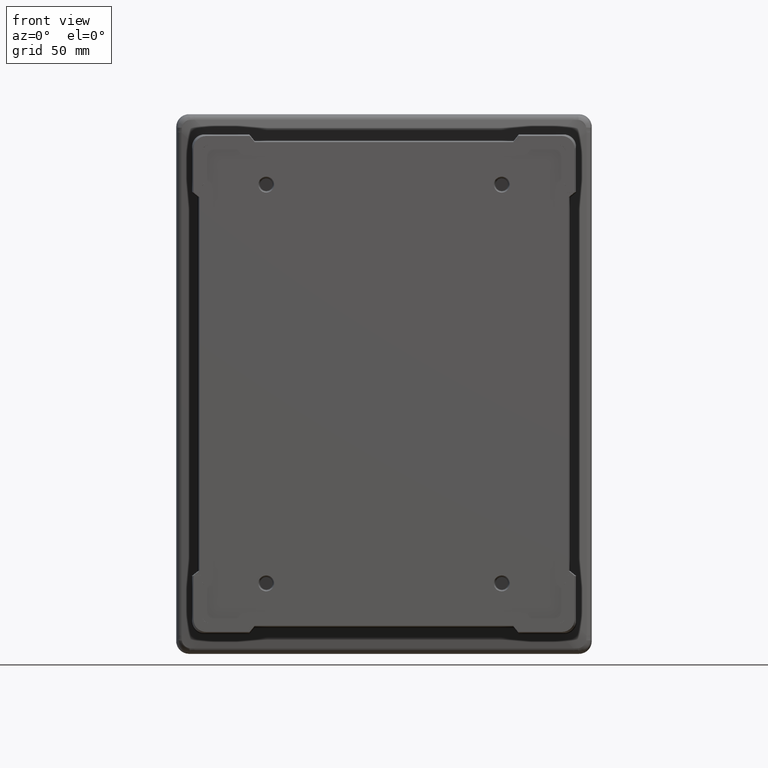
[diagram: clean part render]
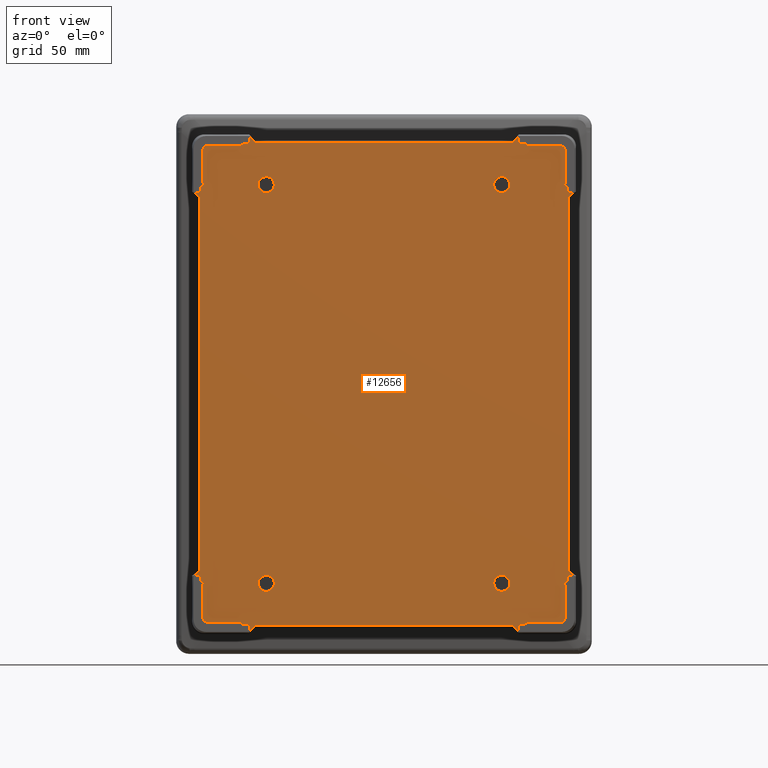
[diagram: same view with one face highlighted and labeled with its STEP entity id]
A machine part, front view. The second image highlights one B-rep face of the part: STEP entity #12656.
In plain terms, the highlighted planar face has unit normal (0, 1, 0).
Its self-contained STEP definition (entity closure, byte-faithful):
#12 = VECTOR ( 'NONE', #868, 1000.000000000000000 ) ;
#19 = VERTEX_POINT ( 'NONE', #13416 ) ;
#23 = LINE ( 'NONE', #11848, #8841 ) ;
#69 = VERTEX_POINT ( 'NONE', #6133 ) ;
#73 = DIRECTION ( 'NONE',  ( 0.7686277124893465800, -0.0000000000000000000, -0.6396963651556841800 ) ) ;
#141 = CARTESIAN_POINT ( 'NONE',  ( 0.0000000000000000000, -113.0000000000000000, 0.0000000000000000000 ) ) ;
#253 = LINE ( 'NONE', #12653, #12900 ) ;
#256 = CARTESIAN_POINT ( 'NONE',  ( -50.79999999999999700, -113.0000000000000000, 82.54999999999999700 ) ) ;
#346 = CIRCLE ( 'NONE', #15269, 3.449999999999994800 ) ;
#357 = CARTESIAN_POINT ( 'NONE',  ( 79.59865092880389200, -113.0000000000000000, -80.56076032317028500 ) ) ;
#359 = VECTOR ( 'NONE', #11896, 1000.000000000000000 ) ;
#407 = DIRECTION ( 'NONE',  ( -0.0000000000000000000, -0.0000000000000000000, -1.000000000000000000 ) ) ;
#414 = DIRECTION ( 'NONE',  ( -0.0000000000000000000, 1.000000000000000000, -0.0000000000000000000 ) ) ;
#460 = DIRECTION ( 'NONE',  ( 0.6427876096865436900, 0.0000000000000000000, -0.7660444431189743500 ) ) ;
#483 = CARTESIAN_POINT ( 'NONE',  ( 61.07609263615650300, -113.0000000000000000, 97.80395304743250100 ) ) ;
#487 = VECTOR ( 'NONE', #12978, 1000.000000000000000 ) ;
#560 = CARTESIAN_POINT ( 'NONE',  ( 60.79516305429810800, -113.0000000000000000, 103.7970541198660000 ) ) ;
#590 = CARTESIAN_POINT ( 'NONE',  ( -58.11110922711555600, -113.0000000000000000, 107.8611092271155200 ) ) ;
#618 = VECTOR ( 'NONE', #3543, 1000.000000000000000 ) ;
#624 = EDGE_CURVE ( 'NONE', #6144, #12127, #4903, .T. ) ;
#633 = DIRECTION ( 'NONE',  ( -0.6924674986019895300, 0.0000000000000000000, 0.7214490719239325900 ) ) ;
#664 = CARTESIAN_POINT ( 'NONE',  ( -79.04705411986609000, -113.0000000000000000, 84.78127374505419300 ) ) ;
#723 = AXIS2_PLACEMENT_3D ( 'NONE', #10188, #15005, #2913 ) ;
#770 = CARTESIAN_POINT ( 'NONE',  ( -61.62191955853109700, -113.0000000000000000, 102.9971493158303700 ) ) ;
#774 = VECTOR ( 'NONE', #8093, 1000.000000000000100 ) ;
#787 = VECTOR ( 'NONE', #7830, 1000.000000000000100 ) ;
#798 = CARTESIAN_POINT ( 'NONE',  ( 79.04705411986609000, -113.0000000000000000, 82.43395982299048800 ) ) ;
#830 = ORIENTED_EDGE ( 'NONE', *, *, #2379, .T. ) ;
#862 = CARTESIAN_POINT ( 'NONE',  ( -78.24714931583039900, -113.0000000000000000, 101.9616779351163700 ) ) ;
#868 = DIRECTION ( 'NONE',  ( -1.000000000000000000, 0.0000000000000000000, -1.141356245349631100E-016 ) ) ;
#900 = EDGE_CURVE ( 'NONE', #2910, #14219, #7874, .T. ) ;
#910 = VERTEX_POINT ( 'NONE', #9520 ) ;
#933 = ORIENTED_EDGE ( 'NONE', *, *, #4670, .T. ) ;
#934 = EDGE_CURVE ( 'NONE', #10741, #7497, #4790, .T. ) ;
#943 = EDGE_CURVE ( 'NONE', #12841, #6820, #2469, .T. ) ;
#992 = VERTEX_POINT ( 'NONE', #8580 ) ;
#1009 = VERTEX_POINT ( 'NONE', #6729 ) ;
#1034 = VECTOR ( 'NONE', #5893, 999.9999999999998900 ) ;
#1055 = CARTESIAN_POINT ( 'NONE',  ( 82.24714931583045500, -113.0000000000000000, 82.77030338133967300 ) ) ;
#1056 = CARTESIAN_POINT ( 'NONE',  ( 79.59865092880387700, -113.0000000000000000, -105.7500000000000000 ) ) ;
#1076 = DIRECTION ( 'NONE',  ( 0.0000000000000000000, 0.0000000000000000000, 1.000000000000000000 ) ) ;
#1124 = CIRCLE ( 'NONE', #723, 3.449999999999994800 ) ;
#1133 = ORIENTED_EDGE ( 'NONE', *, *, #11074, .F. ) ;
#1165 = VECTOR ( 'NONE', #1910, 1000.000000000000100 ) ;
#1179 = EDGE_CURVE ( 'NONE', #8704, #7953, #7676, .T. ) ;
#1278 = LINE ( 'NONE', #6421, #12222 ) ;
#1288 = ORIENTED_EDGE ( 'NONE', *, *, #8871, .T. ) ;
#1325 = VERTEX_POINT ( 'NONE', #12138 ) ;
#1356 = EDGE_LOOP ( 'NONE', ( #2544, #12530 ) ) ;
#1406 = ORIENTED_EDGE ( 'NONE', *, *, #14290, .T. ) ;
#1423 = ORIENTED_EDGE ( 'NONE', *, *, #4065, .T. ) ;
#1496 = DIRECTION ( 'NONE',  ( 0.0000000000000000000, -0.0000000000000000000, 1.000000000000000000 ) ) ;
#1523 = CARTESIAN_POINT ( 'NONE',  ( -50.79999999999999700, -113.0000000000000000, 89.44999999999998900 ) ) ;
#1569 = EDGE_CURVE ( 'NONE', #6792, #4241, #11678, .T. ) ;
#1593 = CARTESIAN_POINT ( 'NONE',  ( 79.04705411986609000, -113.0000000000000000, -84.78127374505419300 ) ) ;
#1616 = VECTOR ( 'NONE', #633, 1000.000000000000000 ) ;
#1632 = DIRECTION ( 'NONE',  ( -0.6924674986019901900, -0.0000000000000000000, -0.7214490719239319300 ) ) ;
#1668 = VECTOR ( 'NONE', #15624, 1000.000000000000000 ) ;
#1676 = CARTESIAN_POINT ( 'NONE',  ( -79.04705411986609000, -113.0000000000000000, 84.78127374505419300 ) ) ;
#1725 = CARTESIAN_POINT ( 'NONE',  ( -78.24714931583045500, -113.0000000000000000, -86.37191955853101900 ) ) ;
#1728 = EDGE_CURVE ( 'NONE', #15508, #10461, #14553, .T. ) ;
#1750 = ORIENTED_EDGE ( 'NONE', *, *, #900, .T. ) ;
#1776 = CARTESIAN_POINT ( 'NONE',  ( -60.79516305429811500, -113.0000000000000000, -103.7970541198660200 ) ) ;
#1805 = EDGE_CURVE ( 'NONE', #3010, #11420, #4865, .T. ) ;
#1815 = FACE_BOUND ( 'NONE', #1356, .T. ) ;
#1845 = CARTESIAN_POINT ( 'NONE',  ( -83.11110922711556300, -113.0000000000000000, 82.86110922711549200 ) ) ;
#1848 = VECTOR ( 'NONE', #9681, 1000.000000000000000 ) ;
#1861 = VERTEX_POINT ( 'NONE', #3783 ) ;
#1910 = DIRECTION ( 'NONE',  ( 0.1045284632676522500, 0.0000000000000000000, -0.9945218953682735100 ) ) ;
#1923 = VECTOR ( 'NONE', #12001, 1000.000000000000100 ) ;
#1944 = ORIENTED_EDGE ( 'NONE', *, *, #10388, .T. ) ;
#1984 = CARTESIAN_POINT ( 'NONE',  ( 60.79516305429810800, -113.0000000000000000, 103.7970541198660000 ) ) ;
#2012 = DIRECTION ( 'NONE',  ( 1.000000000000000000, -0.0000000000000000000, 1.141356245349630900E-016 ) ) ;
#2056 = VERTEX_POINT ( 'NONE', #6543 ) ;
#2096 = CARTESIAN_POINT ( 'NONE',  ( 78.24714931583044100, -113.0000000000000000, 86.37191955853104700 ) ) ;
#2097 = DIRECTION ( 'NONE',  ( 0.6427876096865426900, -0.0000000000000000000, 0.7660444431189752400 ) ) ;
#2118 = LINE ( 'NONE', #3913, #6933 ) ;
#2140 = DIRECTION ( 'NONE',  ( -0.0000000000000000000, 1.000000000000000000, -0.0000000000000000000 ) ) ;
#2147 = EDGE_CURVE ( 'NONE', #12531, #2910, #12049, .T. ) ;
#2153 = EDGE_CURVE ( 'NONE', #3051, #10741, #15518, .T. ) ;
#2231 = EDGE_CURVE ( 'NONE', #11479, #14089, #2816, .T. ) ;
#2276 = CIRCLE ( 'NONE', #12328, 3.449999999999994800 ) ;
#2291 = CARTESIAN_POINT ( 'NONE',  ( -55.80673328882705400, -113.0000000000000000, 104.3374322855034400 ) ) ;
#2379 = EDGE_CURVE ( 'NONE', #7953, #3010, #3574, .T. ) ;
#2401 = EDGE_CURVE ( 'NONE', #2914, #12510, #1278, .T. ) ;
#2431 = CARTESIAN_POINT ( 'NONE',  ( 61.61609800155272900, -113.0000000000000000, -102.9417609010471000 ) ) ;
#2444 = CARTESIAN_POINT ( 'NONE',  ( 77.21167793511642700, -113.0000000000000000, 102.9971493158303800 ) ) ;
#2468 = VERTEX_POINT ( 'NONE', #10164 ) ;
#2469 = LINE ( 'NONE', #14667, #7478 ) ;
#2481 = ORIENTED_EDGE ( 'NONE', *, *, #8045, .T. ) ;
#2505 = VECTOR ( 'NONE', #8628, 1000.000000000000100 ) ;
#2521 = DIRECTION ( 'NONE',  ( 0.0000000000000000000, 1.000000000000000000, 0.0000000000000000000 ) ) ;
#2526 = EDGE_CURVE ( 'NONE', #13321, #2056, #346, .T. ) ;
#2531 = LINE ( 'NONE', #483, #6969 ) ;
#2544 = ORIENTED_EDGE ( 'NONE', *, *, #15848, .T. ) ;
#2599 = EDGE_CURVE ( 'NONE', #11420, #3904, #7254, .T. ) ;
#2601 = CARTESIAN_POINT ( 'NONE',  ( 79.04705411986609000, -113.0000000000000000, -84.78127374505419300 ) ) ;
#2630 = LINE ( 'NONE', #9706, #4180 ) ;
#2680 = ORIENTED_EDGE ( 'NONE', *, *, #1569, .T. ) ;
#2687 = LINE ( 'NONE', #590, #1165 ) ;
#2712 = CARTESIAN_POINT ( 'NONE',  ( -77.05395304743248600, -113.0000000000000000, 78.44822557637076000 ) ) ;
#2727 = CARTESIAN_POINT ( 'NONE',  ( -79.04705411986609000, -113.0000000000000000, 82.43395982299046000 ) ) ;
#2738 = VECTOR ( 'NONE', #9653, 1000.000000000000000 ) ;
#2816 = LINE ( 'NONE', #14353, #1668 ) ;
#2835 = ORIENTED_EDGE ( 'NONE', *, *, #12179, .T. ) ;
#2891 = ORIENTED_EDGE ( 'NONE', *, *, #15670, .T. ) ;
#2910 = VERTEX_POINT ( 'NONE', #2431 ) ;
#2913 = DIRECTION ( 'NONE',  ( 0.0000000000000000000, 0.0000000000000000000, 1.000000000000000000 ) ) ;
#2914 = VERTEX_POINT ( 'NONE', #8627 ) ;
#2929 = DIRECTION ( 'NONE',  ( 0.0000000000000000000, 0.0000000000000000000, -1.000000000000000000 ) ) ;
#2957 = CARTESIAN_POINT ( 'NONE',  ( -60.79516305429808700, -113.0000000000000000, 103.7970541198659900 ) ) ;
#3010 = VERTEX_POINT ( 'NONE', #11289 ) ;
#3051 = VERTEX_POINT ( 'NONE', #13667 ) ;
#3103 = VERTEX_POINT ( 'NONE', #6323 ) ;
#3154 = CARTESIAN_POINT ( 'NONE',  ( 50.79999999999999700, -113.0000000000000000, -86.00000000000000000 ) ) ;
#3171 = CARTESIAN_POINT ( 'NONE',  ( 79.04705411986609000, -113.0000000000000000, -82.43395982299044500 ) ) ;
#3196 = VECTOR ( 'NONE', #10674, 1000.000000000000000 ) ;
#3197 = VERTEX_POINT ( 'NONE', #11407 ) ;
#3232 = CARTESIAN_POINT ( 'NONE',  ( -58.01846891980891000, -113.0000000000000000, -106.9796955802488400 ) ) ;
#3251 = CIRCLE ( 'NONE', #10753, 3.449999999999994800 ) ;
#3275 =( BOUNDED_CURVE ( )  B_SPLINE_CURVE ( 3, ( #9377, #15563, #862, #11904 ),
 .UNSPECIFIED., .F., .F. ) 
 B_SPLINE_CURVE_WITH_KNOTS ( ( 4, 4 ),
 ( 5.497825219993078600, 7.068545394366097400 ),
 .UNSPECIFIED. ) 
 CURVE ( )  GEOMETRIC_REPRESENTATION_ITEM ( )  RATIONAL_B_SPLINE_CURVE ( ( 1.000000000000000000, 0.8047558030806112300, 0.8047558030806112300, 1.000000000000000000 ) ) 
 REPRESENTATION_ITEM ( '' )  );
#3282 = VECTOR ( 'NONE', #9712, 1000.000000000000100 ) ;
#3377 = EDGE_CURVE ( 'NONE', #10452, #6792, #3735, .T. ) ;
#3418 = DIRECTION ( 'NONE',  ( 0.9945218953682737300, -0.0000000000000000000, 0.1045284632676500800 ) ) ;
#3456 = LINE ( 'NONE', #770, #12496 ) ;
#3510 = ORIENTED_EDGE ( 'NONE', *, *, #9051, .T. ) ;
#3516 = CARTESIAN_POINT ( 'NONE',  ( -82.24714931583047000, -113.0000000000000000, -82.77030338133964400 ) ) ;
#3522 = CARTESIAN_POINT ( 'NONE',  ( -50.79999999999999700, -113.0000000000000000, 86.00000000000000000 ) ) ;
#3530 = ORIENTED_EDGE ( 'NONE', *, *, #13249, .F. ) ;
#3543 = DIRECTION ( 'NONE',  ( 1.000000000000000000, 0.0000000000000000000, 0.0000000000000000000 ) ) ;
#3574 = LINE ( 'NONE', #12243, #3763 ) ;
#3598 = CARTESIAN_POINT ( 'NONE',  ( 60.79516305429811500, -113.0000000000000000, -103.7970541198660000 ) ) ;
#3616 = CARTESIAN_POINT ( 'NONE',  ( -78.24714931583042700, -113.0000000000000000, -100.4972445081699400 ) ) ;
#3686 = CARTESIAN_POINT ( 'NONE',  ( 75.74724450816998500, -113.0000000000000000, 102.9971493158303700 ) ) ;
#3695 = CARTESIAN_POINT ( 'NONE',  ( -77.58691270247447800, -113.0000000000000000, 86.30252589418985600 ) ) ;
#3714 = CARTESIAN_POINT ( 'NONE',  ( 77.58691270247450700, -113.0000000000000000, -86.30252589418982700 ) ) ;
#3735 = LINE ( 'NONE', #1056, #14875 ) ;
#3763 = VECTOR ( 'NONE', #4906, 1000.000000000000000 ) ;
#3783 = CARTESIAN_POINT ( 'NONE',  ( 75.74724450816999900, -113.0000000000000000, -102.9971493158303600 ) ) ;
#3795 = PLANE ( 'NONE',  #14600 ) ;
#3904 = VERTEX_POINT ( 'NONE', #11203 ) ;
#3913 = CARTESIAN_POINT ( 'NONE',  ( -79.59865092880387700, -113.0000000000000000, -105.7500000000000000 ) ) ;
#3923 = EDGE_CURVE ( 'NONE', #1325, #9974, #8734, .T. ) ;
#3968 = ORIENTED_EDGE ( 'NONE', *, *, #2401, .T. ) ;
#3975 = CARTESIAN_POINT ( 'NONE',  ( -78.24714931583042700, -113.0000000000000000, 86.37191955853103300 ) ) ;
#3985 = VECTOR ( 'NONE', #9920, 1000.000000000000200 ) ;
#4000 = EDGE_CURVE ( 'NONE', #14056, #11479, #15459, .T. ) ;
#4030 = LINE ( 'NONE', #13769, #787 ) ;
#4065 = EDGE_CURVE ( 'NONE', #11784, #13797, #4891, .T. ) ;
#4089 = CARTESIAN_POINT ( 'NONE',  ( 53.67550526945411300, -113.0000000000000000, -101.8039530474324900 ) ) ;
#4110 = EDGE_CURVE ( 'NONE', #14165, #12531, #9688, .T. ) ;
#4164 = CIRCLE ( 'NONE', #11102, 3.449999999999994800 ) ;
#4180 = VECTOR ( 'NONE', #11085, 1000.000000000000000 ) ;
#4202 = VECTOR ( 'NONE', #7791, 1000.000000000000100 ) ;
#4211 = ORIENTED_EDGE ( 'NONE', *, *, #8168, .T. ) ;
#4241 = VERTEX_POINT ( 'NONE', #1055 ) ;
#4332 = CARTESIAN_POINT ( 'NONE',  ( 50.79999999999999700, -113.0000000000000000, 86.00000000000000000 ) ) ;
#4347 = DIRECTION ( 'NONE',  ( -0.1045284632676519700, -0.0000000000000000000, 0.9945218953682736200 ) ) ;
#4421 = ORIENTED_EDGE ( 'NONE', *, *, #7498, .T. ) ;
#4434 = LINE ( 'NONE', #12842, #14227 ) ;
#4491 = DIRECTION ( 'NONE',  ( -2.504227853161798400E-015, -0.0000000000000000000, -1.000000000000000000 ) ) ;
#4602 = VERTEX_POINT ( 'NONE', #3232 ) ;
#4618 = ORIENTED_EDGE ( 'NONE', *, *, #12847, .T. ) ;
#4670 = EDGE_CURVE ( 'NONE', #13828, #7701, #8351, .T. ) ;
#4708 = CARTESIAN_POINT ( 'NONE',  ( -50.79999999999999700, -113.0000000000000000, -86.00000000000000000 ) ) ;
#4729 = CARTESIAN_POINT ( 'NONE',  ( -81.00000000000001400, -113.0000000000000000, -104.3374322855034400 ) ) ;
#4762 = CARTESIAN_POINT ( 'NONE',  ( 78.24714931583039900, -113.0000000000000000, 101.9616779351163700 ) ) ;
#4790 = LINE ( 'NONE', #6533, #4202 ) ;
#4865 =( BOUNDED_CURVE ( )  B_SPLINE_CURVE ( 3, ( #9668, #4762, #2444, #3686 ),
 .UNSPECIFIED., .F., .F. ) 
 B_SPLINE_CURVE_WITH_KNOTS ( ( 4, 4 ),
 ( 5.497825219993075100, 7.068545394366093900 ),
 .UNSPECIFIED. ) 
 CURVE ( )  GEOMETRIC_REPRESENTATION_ITEM ( )  RATIONAL_B_SPLINE_CURVE ( ( 1.000000000000000000, 0.8047558030806112300, 0.8047558030806112300, 1.000000000000000000 ) ) 
 REPRESENTATION_ITEM ( '' )  );
#4891 = LINE ( 'NONE', #11790, #1616 ) ;
#4903 = LINE ( 'NONE', #9579, #12585 ) ;
#4906 = DIRECTION ( 'NONE',  ( -2.504227853161800700E-015, -0.0000000000000000000, 1.000000000000000000 ) ) ;
#4910 = CARTESIAN_POINT ( 'NONE',  ( 75.74724450816999900, -113.0000000000000000, -102.9971493158303600 ) ) ;
#4994 = EDGE_CURVE ( 'NONE', #9258, #15104, #11797, .T. ) ;
#5011 = CARTESIAN_POINT ( 'NONE',  ( 78.24714931583041300, -113.0000000000000000, -100.4972445081699400 ) ) ;
#5017 = LINE ( 'NONE', #4089, #5807 ) ;
#5035 = EDGE_CURVE ( 'NONE', #14089, #1325, #14663, .T. ) ;
#5153 = EDGE_CURVE ( 'NONE', #14470, #14235, #9284, .T. ) ;
#5306 = VECTOR ( 'NONE', #9143, 999.9999999999998900 ) ;
#5308 = ORIENTED_EDGE ( 'NONE', *, *, #5911, .T. ) ;
#5319 = DIRECTION ( 'NONE',  ( -0.1045284632676516100, 0.0000000000000000000, -0.9945218953682735100 ) ) ;
#5352 = DIRECTION ( 'NONE',  ( 0.0000000000000000000, 0.0000000000000000000, 1.000000000000000000 ) ) ;
#5383 = CARTESIAN_POINT ( 'NONE',  ( -58.02030338133972300, -113.0000000000000000, 106.9971493158303700 ) ) ;
#5414 = CARTESIAN_POINT ( 'NONE',  ( -55.80134676371475400, -113.0000000000000000, -104.3374322855034400 ) ) ;
#5573 = ORIENTED_EDGE ( 'NONE', *, *, #6884, .T. ) ;
#5599 = DIRECTION ( 'NONE',  ( 0.0000000000000000000, -1.000000000000000000, 0.0000000000000000000 ) ) ;
#5670 = CARTESIAN_POINT ( 'NONE',  ( 60.79516305429811500, -113.0000000000000000, -103.7970541198660000 ) ) ;
#5676 = CARTESIAN_POINT ( 'NONE',  ( 83.11110922711557700, -113.0000000000000000, -82.86110922711546300 ) ) ;
#5719 = CARTESIAN_POINT ( 'NONE',  ( 78.24714931583044100, -113.0000000000000000, -86.37191955853100500 ) ) ;
#5745 = VERTEX_POINT ( 'NONE', #8360 ) ;
#5804 = ORIENTED_EDGE ( 'NONE', *, *, #2526, .T. ) ;
#5807 = VECTOR ( 'NONE', #460, 999.9999999999998900 ) ;
#5825 = ORIENTED_EDGE ( 'NONE', *, *, #9772, .F. ) ;
#5873 = FACE_BOUND ( 'NONE', #12092, .T. ) ;
#5879 = CARTESIAN_POINT ( 'NONE',  ( -61.62191955853109700, -113.0000000000000000, -102.9971493158303600 ) ) ;
#5893 = DIRECTION ( 'NONE',  ( 0.9945218953682737300, -0.0000000000000000000, 0.1045284632676505100 ) ) ;
#5911 = EDGE_CURVE ( 'NONE', #13276, #14470, #7357, .T. ) ;
#5945 = DIRECTION ( 'NONE',  ( 0.0000000000000000000, 0.0000000000000000000, 1.000000000000000000 ) ) ;
#5957 = CARTESIAN_POINT ( 'NONE',  ( -79.04705411986609000, -113.0000000000000000, 84.78127374505419300 ) ) ;
#5964 = EDGE_CURVE ( 'NONE', #1009, #3103, #13497, .T. ) ;
#6028 = ORIENTED_EDGE ( 'NONE', *, *, #8327, .T. ) ;
#6086 = CARTESIAN_POINT ( 'NONE',  ( 58.11110922711552700, -113.0000000000000000, 107.8611092271155200 ) ) ;
#6102 = CIRCLE ( 'NONE', #9976, 3.449999999999994800 ) ;
#6133 = CARTESIAN_POINT ( 'NONE',  ( -75.74724450817001300, -113.0000000000000000, -102.9971493158303600 ) ) ;
#6144 = VERTEX_POINT ( 'NONE', #2601 ) ;
#6244 = VERTEX_POINT ( 'NONE', #1523 ) ;
#6276 = DIRECTION ( 'NONE',  ( 1.669485235441199000E-015, -0.0000000000000000000, -1.000000000000000000 ) ) ;
#6323 = CARTESIAN_POINT ( 'NONE',  ( -77.58691270247449300, -113.0000000000000000, -86.30252589418985600 ) ) ;
#6421 = CARTESIAN_POINT ( 'NONE',  ( -78.24714931583039900, -113.0000000000000000, 102.9971493158303700 ) ) ;
#6460 =( BOUNDED_CURVE ( )  B_SPLINE_CURVE ( 3, ( #4910, #13517, #7656, #5011 ),
 .UNSPECIFIED., .F., .F. ) 
 B_SPLINE_CURVE_WITH_KNOTS ( ( 4, 4 ),
 ( 5.497825219993077700, 7.068545394366096500 ),
 .UNSPECIFIED. ) 
 CURVE ( )  GEOMETRIC_REPRESENTATION_ITEM ( )  RATIONAL_B_SPLINE_CURVE ( ( 1.000000000000000000, 0.8047558030806112300, 0.8047558030806112300, 1.000000000000000000 ) ) 
 REPRESENTATION_ITEM ( '' )  );
#6533 = CARTESIAN_POINT ( 'NONE',  ( 73.05395304743250100, -113.0000000000000000, -85.82609263615647400 ) ) ;
#6543 = CARTESIAN_POINT ( 'NONE',  ( -50.79999999999999700, -113.0000000000000000, -89.44999999999998900 ) ) ;
#6567 = CARTESIAN_POINT ( 'NONE',  ( 79.59865092880390600, -113.0000000000000000, 80.56607009157906400 ) ) ;
#6632 = CARTESIAN_POINT ( 'NONE',  ( 58.02030338133970800, -113.0000000000000000, 106.9971493158303700 ) ) ;
#6680 = VERTEX_POINT ( 'NONE', #11233 ) ;
#6690 = ORIENTED_EDGE ( 'NONE', *, *, #4110, .T. ) ;
#6713 = ORIENTED_EDGE ( 'NONE', *, *, #934, .T. ) ;
#6718 = CARTESIAN_POINT ( 'NONE',  ( 50.79999999999999700, -113.0000000000000000, 82.54999999999999700 ) ) ;
#6729 = CARTESIAN_POINT ( 'NONE',  ( -79.04705411986609000, -113.0000000000000000, -84.78127374505419300 ) ) ;
#6792 = VERTEX_POINT ( 'NONE', #6567 ) ;
#6799 = VERTEX_POINT ( 'NONE', #6718 ) ;
#6802 = VECTOR ( 'NONE', #10522, 1000.000000000000100 ) ;
#6815 = FACE_BOUND ( 'NONE', #9268, .T. ) ;
#6819 = CARTESIAN_POINT ( 'NONE',  ( 53.69822557637081000, -113.0000000000000000, 101.8039530474324700 ) ) ;
#6820 = VERTEX_POINT ( 'NONE', #1776 ) ;
#6884 = EDGE_CURVE ( 'NONE', #14219, #1861, #8657, .T. ) ;
#6893 = AXIS2_PLACEMENT_3D ( 'NONE', #13944, #8862, #2929 ) ;
#6903 = DIRECTION ( 'NONE',  ( -0.9945218953682735100, 0.0000000000000000000, 0.1045284632676514900 ) ) ;
#6933 = VECTOR ( 'NONE', #7583, 1000.000000000000000 ) ;
#6948 = CARTESIAN_POINT ( 'NONE',  ( -75.74724450816997000, -113.0000000000000000, 102.9971493158303700 ) ) ;
#6969 = VECTOR ( 'NONE', #9044, 999.9999999999998900 ) ;
#7015 = CARTESIAN_POINT ( 'NONE',  ( 57.68395982299049500, -113.0000000000000000, 103.7970541198660000 ) ) ;
#7068 = CARTESIAN_POINT ( 'NONE',  ( 61.62191955853109700, -113.0000000000000000, -102.9971493158303600 ) ) ;
#7208 = DIRECTION ( 'NONE',  ( 0.1045284632676512500, -0.0000000000000000000, 0.9945218953682736200 ) ) ;
#7216 = DIRECTION ( 'NONE',  ( 1.319681587084811800E-016, 0.0000000000000000000, 1.000000000000000000 ) ) ;
#7228 = CARTESIAN_POINT ( 'NONE',  ( 58.02030338133973000, -113.0000000000000000, -106.9971493158303600 ) ) ;
#7241 = CARTESIAN_POINT ( 'NONE',  ( 58.01846891980890300, -113.0000000000000000, -106.9796955802488300 ) ) ;
#7254 = LINE ( 'NONE', #13957, #9750 ) ;
#7298 = EDGE_LOOP ( 'NONE', ( #1288, #5804 ) ) ;
#7310 = CARTESIAN_POINT ( 'NONE',  ( 78.24714931583044100, -113.0000000000000000, 86.37191955853104700 ) ) ;
#7316 = ORIENTED_EDGE ( 'NONE', *, *, #12425, .T. ) ;
#7327 = CARTESIAN_POINT ( 'NONE',  ( -57.68395982299053100, -113.0000000000000000, -103.7970541198660200 ) ) ;
#7357 = LINE ( 'NONE', #15007, #8321 ) ;
#7403 = CARTESIAN_POINT ( 'NONE',  ( -78.24714931583041300, -113.0000000000000000, -101.9616779351163700 ) ) ;
#7404 = CARTESIAN_POINT ( 'NONE',  ( -78.24714931583045500, -113.0000000000000000, -86.37191955853101900 ) ) ;
#7426 = CARTESIAN_POINT ( 'NONE',  ( 79.04705411986609000, -113.0000000000000000, 84.78127374505419300 ) ) ;
#7478 = VECTOR ( 'NONE', #11506, 1000.000000000000100 ) ;
#7497 = VERTEX_POINT ( 'NONE', #3714 ) ;
#7498 = EDGE_CURVE ( 'NONE', #14235, #1009, #9055, .T. ) ;
#7513 = VERTEX_POINT ( 'NONE', #256 ) ;
#7548 = CARTESIAN_POINT ( 'NONE',  ( -79.04705411986609000, -113.0000000000000000, -84.78127374505419300 ) ) ;
#7571 = CARTESIAN_POINT ( 'NONE',  ( -75.74724450817001300, -113.0000000000000000, -102.9971493158303600 ) ) ;
#7583 = DIRECTION ( 'NONE',  ( -1.319681587084811800E-016, 0.0000000000000000000, -1.000000000000000000 ) ) ;
#7654 =( BOUNDED_CURVE ( )  B_SPLINE_CURVE ( 3, ( #3616, #7403, #13570, #7571 ),
 .UNSPECIFIED., .F., .F. ) 
 B_SPLINE_CURVE_WITH_KNOTS ( ( 4, 4 ),
 ( 5.497825219993075900, 7.068545394366094700 ),
 .UNSPECIFIED. ) 
 CURVE ( )  GEOMETRIC_REPRESENTATION_ITEM ( )  RATIONAL_B_SPLINE_CURVE ( ( 1.000000000000000000, 0.8047558030806112300, 0.8047558030806112300, 1.000000000000000000 ) ) 
 REPRESENTATION_ITEM ( '' )  );
#7656 = CARTESIAN_POINT ( 'NONE',  ( 78.24714931583041300, -113.0000000000000000, -101.9616779351163700 ) ) ;
#7664 = EDGE_LOOP ( 'NONE', ( #8285, #1750, #5573, #8294, #9007, #6713, #15238, #7887, #8453, #12795, #8505, #2680, #12626, #10259, #13636, #11080, #830, #13901, #10663, #15662, #1423, #10367, #8148, #4618, #4211, #13696, #12659, #13701, #933, #9848, #3968, #6028, #12150, #3510, #10810, #11134, #15807, #12280, #2481, #5308, #9587, #4421, #9485, #10997, #13049, #8722, #13826, #1406, #10803, #2835, #1944, #7316, #9131, #10841, #2891, #6690 ) ) ;
#7666 = LINE ( 'NONE', #7404, #3985 ) ;
#7675 = EDGE_CURVE ( 'NONE', #7701, #2914, #3456, .T. ) ;
#7676 = LINE ( 'NONE', #2096, #13796 ) ;
#7701 = VERTEX_POINT ( 'NONE', #11864 ) ;
#7706 = VERTEX_POINT ( 'NONE', #9243 ) ;
#7791 = DIRECTION ( 'NONE',  ( -0.9945218953682731800, -0.0000000000000000000, 0.1045284632676547800 ) ) ;
#7830 = DIRECTION ( 'NONE',  ( 0.9945218953682735100, -0.0000000000000000000, -0.1045284632676524400 ) ) ;
#7840 = CARTESIAN_POINT ( 'NONE',  ( -79.59865092880387700, -113.0000000000000000, -80.56607009157900700 ) ) ;
#7874 = LINE ( 'NONE', #7068, #774 ) ;
#7887 = ORIENTED_EDGE ( 'NONE', *, *, #624, .T. ) ;
#7953 = VERTEX_POINT ( 'NONE', #7310 ) ;
#8045 = EDGE_CURVE ( 'NONE', #9974, #13276, #2118, .T. ) ;
#8089 = CARTESIAN_POINT ( 'NONE',  ( -53.67550526945409900, -113.0000000000000000, -101.8039530474324700 ) ) ;
#8093 = DIRECTION ( 'NONE',  ( 0.1045284632676511900, -0.0000000000000000000, -0.9945218953682736200 ) ) ;
#8108 = DIRECTION ( 'NONE',  ( 0.9945218953682737300, 0.0000000000000000000, -0.1045284632676505100 ) ) ;
#8148 = ORIENTED_EDGE ( 'NONE', *, *, #1728, .T. ) ;
#8168 = EDGE_CURVE ( 'NONE', #910, #13604, #15771, .T. ) ;
#8190 = VERTEX_POINT ( 'NONE', #10355 ) ;
#8285 = ORIENTED_EDGE ( 'NONE', *, *, #2147, .T. ) ;
#8294 = ORIENTED_EDGE ( 'NONE', *, *, #10243, .T. ) ;
#8299 = EDGE_CURVE ( 'NONE', #7706, #10437, #23, .T. ) ;
#8321 = VECTOR ( 'NONE', #15550, 1000.000000000000100 ) ;
#8327 = EDGE_CURVE ( 'NONE', #12510, #7706, #3275, .T. ) ;
#8351 = LINE ( 'NONE', #5957, #2738 ) ;
#8360 = CARTESIAN_POINT ( 'NONE',  ( 55.80134676371476100, -113.0000000000000000, -104.3374322855034400 ) ) ;
#8453 = ORIENTED_EDGE ( 'NONE', *, *, #9184, .T. ) ;
#8505 = ORIENTED_EDGE ( 'NONE', *, *, #3377, .T. ) ;
#8514 = VERTEX_POINT ( 'NONE', #9846 ) ;
#8569 = LINE ( 'NONE', #3598, #10672 ) ;
#8580 = CARTESIAN_POINT ( 'NONE',  ( 50.79999999999999700, -113.0000000000000000, -82.54999999999999700 ) ) ;
#8627 = CARTESIAN_POINT ( 'NONE',  ( -61.62191955853109700, -113.0000000000000000, 102.9971493158303700 ) ) ;
#8628 = DIRECTION ( 'NONE',  ( -0.9945218953682735100, 0.0000000000000000000, -0.1045284632676514900 ) ) ;
#8633 = LINE ( 'NONE', #1984, #12 ) ;
#8657 = LINE ( 'NONE', #9397, #9987 ) ;
#8704 = VERTEX_POINT ( 'NONE', #11434 ) ;
#8722 = ORIENTED_EDGE ( 'NONE', *, *, #11837, .T. ) ;
#8734 = LINE ( 'NONE', #2712, #11043 ) ;
#8795 = VECTOR ( 'NONE', #6276, 1000.000000000000000 ) ;
#8841 = VECTOR ( 'NONE', #4491, 1000.000000000000000 ) ;
#8860 = VECTOR ( 'NONE', #407, 1000.000000000000000 ) ;
#8862 = DIRECTION ( 'NONE',  ( 0.0000000000000000000, -1.000000000000000000, 0.0000000000000000000 ) ) ;
#8871 = EDGE_CURVE ( 'NONE', #2056, #13321, #3251, .T. ) ;
#8933 = DIRECTION ( 'NONE',  ( 0.0000000000000000000, 0.0000000000000000000, 1.000000000000000000 ) ) ;
#9007 = ORIENTED_EDGE ( 'NONE', *, *, #2153, .T. ) ;
#9044 = DIRECTION ( 'NONE',  ( -0.1045284632676575000, -0.0000000000000000000, -0.9945218953682730700 ) ) ;
#9048 = DIRECTION ( 'NONE',  ( -0.6924674986019895300, 0.0000000000000000000, 0.7214490719239325900 ) ) ;
#9051 = EDGE_CURVE ( 'NONE', #10437, #14056, #4030, .T. ) ;
#9055 = LINE ( 'NONE', #7548, #8860 ) ;
#9131 = ORIENTED_EDGE ( 'NONE', *, *, #14959, .T. ) ;
#9143 = DIRECTION ( 'NONE',  ( -0.6396963651556903900, -0.0000000000000000000, 0.7686277124893414700 ) ) ;
#9145 = CARTESIAN_POINT ( 'NONE',  ( -58.11110922711555600, -113.0000000000000000, -107.8611092271154900 ) ) ;
#9184 = EDGE_CURVE ( 'NONE', #12127, #9786, #14009, .T. ) ;
#9243 = CARTESIAN_POINT ( 'NONE',  ( -78.24714931583039900, -113.0000000000000000, 100.4972445081699600 ) ) ;
#9258 = VERTEX_POINT ( 'NONE', #798 ) ;
#9268 = EDGE_LOOP ( 'NONE', ( #5825, #9683 ) ) ;
#9284 = LINE ( 'NONE', #9577, #1034 ) ;
#9312 = FACE_BOUND ( 'NONE', #7298, .T. ) ;
#9377 = CARTESIAN_POINT ( 'NONE',  ( -75.74724450816997000, -113.0000000000000000, 102.9971493158303700 ) ) ;
#9397 = CARTESIAN_POINT ( 'NONE',  ( 78.24714931583041300, -113.0000000000000000, -102.9971493158303600 ) ) ;
#9485 = ORIENTED_EDGE ( 'NONE', *, *, #5964, .T. ) ;
#9498 = CARTESIAN_POINT ( 'NONE',  ( 61.61609800155267900, -113.0000000000000000, 102.9417609010471600 ) ) ;
#9520 = CARTESIAN_POINT ( 'NONE',  ( 55.80673328882706100, -113.0000000000000000, 104.3374322855034400 ) ) ;
#9577 = CARTESIAN_POINT ( 'NONE',  ( -83.11110922711557700, -113.0000000000000000, -82.86110922711546300 ) ) ;
#9579 = CARTESIAN_POINT ( 'NONE',  ( 79.04705411986609000, -113.0000000000000000, -84.78127374505419300 ) ) ;
#9587 = ORIENTED_EDGE ( 'NONE', *, *, #5153, .T. ) ;
#9618 = CIRCLE ( 'NONE', #14012, 3.449999999999994800 ) ;
#9653 = DIRECTION ( 'NONE',  ( -0.6924674986019901900, -0.0000000000000000000, -0.7214490719239319300 ) ) ;
#9667 = EDGE_CURVE ( 'NONE', #13797, #15508, #8633, .T. ) ;
#9668 = CARTESIAN_POINT ( 'NONE',  ( 78.24714931583039900, -113.0000000000000000, 100.4972445081699600 ) ) ;
#9681 = DIRECTION ( 'NONE',  ( 1.000000000000000000, -0.0000000000000000000, -0.0000000000000000000 ) ) ;
#9683 = ORIENTED_EDGE ( 'NONE', *, *, #9955, .F. ) ;
#9688 = LINE ( 'NONE', #5670, #11794 ) ;
#9706 = CARTESIAN_POINT ( 'NONE',  ( 60.79516305429811500, -113.0000000000000000, -103.7970541198660000 ) ) ;
#9712 = DIRECTION ( 'NONE',  ( 0.6924674986019890800, -0.0000000000000000000, -0.7214490719239329300 ) ) ;
#9750 = VECTOR ( 'NONE', #15362, 1000.000000000000000 ) ;
#9772 = EDGE_CURVE ( 'NONE', #6244, #7513, #2276, .T. ) ;
#9786 = VERTEX_POINT ( 'NONE', #13361 ) ;
#9846 = CARTESIAN_POINT ( 'NONE',  ( -61.62191955853109700, -113.0000000000000000, -102.9971493158303600 ) ) ;
#9848 = ORIENTED_EDGE ( 'NONE', *, *, #7675, .T. ) ;
#9910 = EDGE_CURVE ( 'NONE', #3103, #10419, #7666, .T. ) ;
#9920 = DIRECTION ( 'NONE',  ( -0.9945218953682737300, -0.0000000000000000000, -0.1045284632676492500 ) ) ;
#9955 = EDGE_CURVE ( 'NONE', #7513, #6244, #1124, .T. ) ;
#9974 = VERTEX_POINT ( 'NONE', #13827 ) ;
#9976 = AXIS2_PLACEMENT_3D ( 'NONE', #3154, #5599, #11778 ) ;
#9987 = VECTOR ( 'NONE', #14158, 1000.000000000000000 ) ;
#10023 = CARTESIAN_POINT ( 'NONE',  ( 60.79516305429810800, -113.0000000000000000, 103.7970541198660000 ) ) ;
#10070 = VECTOR ( 'NONE', #14095, 1000.000000000000000 ) ;
#10132 = EDGE_CURVE ( 'NONE', #7497, #6144, #2630, .T. ) ;
#10164 = CARTESIAN_POINT ( 'NONE',  ( 50.79999999999999700, -113.0000000000000000, -89.44999999999998900 ) ) ;
#10188 = CARTESIAN_POINT ( 'NONE',  ( -50.79999999999999700, -113.0000000000000000, 86.00000000000000000 ) ) ;
#10243 = EDGE_CURVE ( 'NONE', #1861, #3051, #6460, .T. ) ;
#10259 = ORIENTED_EDGE ( 'NONE', *, *, #4994, .T. ) ;
#10260 = CARTESIAN_POINT ( 'NONE',  ( 61.62191955853109700, -113.0000000000000000, -102.9971493158303600 ) ) ;
#10279 = CARTESIAN_POINT ( 'NONE',  ( -50.79999999999999700, -113.0000000000000000, -86.00000000000000000 ) ) ;
#10327 = EDGE_CURVE ( 'NONE', #10419, #8190, #15924, .T. ) ;
#10355 = CARTESIAN_POINT ( 'NONE',  ( -78.24714931583042700, -113.0000000000000000, -100.4972445081699400 ) ) ;
#10367 = ORIENTED_EDGE ( 'NONE', *, *, #9667, .T. ) ;
#10388 = EDGE_CURVE ( 'NONE', #14967, #4602, #12246, .T. ) ;
#10419 = VERTEX_POINT ( 'NONE', #1725 ) ;
#10437 = VERTEX_POINT ( 'NONE', #3975 ) ;
#10452 = VERTEX_POINT ( 'NONE', #357 ) ;
#10461 = VERTEX_POINT ( 'NONE', #6632 ) ;
#10522 = DIRECTION ( 'NONE',  ( -0.7660444431189736800, 0.0000000000000000000, 0.6427876096865445800 ) ) ;
#10566 = CARTESIAN_POINT ( 'NONE',  ( 60.79516305429811500, -113.0000000000000000, -103.7970541198660000 ) ) ;
#10661 = VECTOR ( 'NONE', #1632, 1000.000000000000000 ) ;
#10663 = ORIENTED_EDGE ( 'NONE', *, *, #2599, .T. ) ;
#10672 = VECTOR ( 'NONE', #13292, 1000.000000000000000 ) ;
#10674 = DIRECTION ( 'NONE',  ( 0.6924674986019894200, 0.0000000000000000000, 0.7214490719239327100 ) ) ;
#10741 = VERTEX_POINT ( 'NONE', #14620 ) ;
#10753 = AXIS2_PLACEMENT_3D ( 'NONE', #4708, #2140, #13245 ) ;
#10803 = ORIENTED_EDGE ( 'NONE', *, *, #943, .T. ) ;
#10810 = ORIENTED_EDGE ( 'NONE', *, *, #4000, .T. ) ;
#10841 = ORIENTED_EDGE ( 'NONE', *, *, #15205, .T. ) ;
#10845 = LINE ( 'NONE', #14204, #6802 ) ;
#10889 = LINE ( 'NONE', #5383, #5306 ) ;
#10893 = EDGE_CURVE ( 'NONE', #6799, #6680, #4164, .T. ) ;
#10920 = EDGE_CURVE ( 'NONE', #13604, #3197, #10889, .T. ) ;
#10997 = ORIENTED_EDGE ( 'NONE', *, *, #9910, .T. ) ;
#11043 = VECTOR ( 'NONE', #73, 1000.000000000000100 ) ;
#11074 = EDGE_CURVE ( 'NONE', #992, #2468, #6102, .T. ) ;
#11080 = ORIENTED_EDGE ( 'NONE', *, *, #1179, .T. ) ;
#11085 = DIRECTION ( 'NONE',  ( 0.6924674986019894200, 0.0000000000000000000, 0.7214490719239327100 ) ) ;
#11087 = CARTESIAN_POINT ( 'NONE',  ( 83.11110922711556300, -113.0000000000000000, 82.86110922711549200 ) ) ;
#11102 = AXIS2_PLACEMENT_3D ( 'NONE', #11400, #414, #8933 ) ;
#11107 = VECTOR ( 'NONE', #7208, 999.9999999999998900 ) ;
#11134 = ORIENTED_EDGE ( 'NONE', *, *, #2231, .T. ) ;
#11152 = LINE ( 'NONE', #7228, #1923 ) ;
#11163 = EDGE_CURVE ( 'NONE', #69, #8514, #14334, .T. ) ;
#11203 = CARTESIAN_POINT ( 'NONE',  ( 61.62191955853104700, -113.0000000000000000, 102.9971493158303700 ) ) ;
#11233 = CARTESIAN_POINT ( 'NONE',  ( 50.79999999999999700, -113.0000000000000000, 89.44999999999998900 ) ) ;
#11270 = CARTESIAN_POINT ( 'NONE',  ( 75.74724450816998500, -113.0000000000000000, 102.9971493158303700 ) ) ;
#11289 = CARTESIAN_POINT ( 'NONE',  ( 78.24714931583039900, -113.0000000000000000, 100.4972445081699600 ) ) ;
#11400 = CARTESIAN_POINT ( 'NONE',  ( 50.79999999999999700, -113.0000000000000000, 86.00000000000000000 ) ) ;
#11407 = CARTESIAN_POINT ( 'NONE',  ( -58.02030338133973000, -113.0000000000000000, 106.9971493158303700 ) ) ;
#11420 = VERTEX_POINT ( 'NONE', #11270 ) ;
#11434 = CARTESIAN_POINT ( 'NONE',  ( 77.58691270247446400, -113.0000000000000000, 86.30252589418987000 ) ) ;
#11479 = VERTEX_POINT ( 'NONE', #664 ) ;
#11506 = DIRECTION ( 'NONE',  ( 0.6924674986019890800, -0.0000000000000000000, -0.7214490719239329300 ) ) ;
#11527 = CARTESIAN_POINT ( 'NONE',  ( -79.04705411986609000, -113.0000000000000000, -82.43395982299046000 ) ) ;
#11558 = DIRECTION ( 'NONE',  ( -1.000000000000000000, 0.0000000000000000000, -1.141356245349631100E-016 ) ) ;
#11668 = VECTOR ( 'NONE', #5319, 1000.000000000000100 ) ;
#11678 = LINE ( 'NONE', #13903, #15730 ) ;
#11778 = DIRECTION ( 'NONE',  ( 0.0000000000000000000, 0.0000000000000000000, -1.000000000000000000 ) ) ;
#11784 = VERTEX_POINT ( 'NONE', #9498 ) ;
#11790 = CARTESIAN_POINT ( 'NONE',  ( 79.04705411986609000, -113.0000000000000000, 84.78127374505419300 ) ) ;
#11793 = CIRCLE ( 'NONE', #6893, 3.449999999999994800 ) ;
#11794 = VECTOR ( 'NONE', #2012, 1000.000000000000000 ) ;
#11797 = LINE ( 'NONE', #1593, #10070 ) ;
#11837 = EDGE_CURVE ( 'NONE', #8190, #69, #7654, .T. ) ;
#11848 = CARTESIAN_POINT ( 'NONE',  ( -78.24714931583042700, -113.0000000000000000, 86.37191955853103300 ) ) ;
#11864 = CARTESIAN_POINT ( 'NONE',  ( -61.61609800155272200, -113.0000000000000000, 102.9417609010470800 ) ) ;
#11896 = DIRECTION ( 'NONE',  ( 1.669485235441197400E-015, -0.0000000000000000000, 1.000000000000000000 ) ) ;
#11904 = CARTESIAN_POINT ( 'NONE',  ( -78.24714931583039900, -113.0000000000000000, 100.4972445081699600 ) ) ;
#12001 = DIRECTION ( 'NONE',  ( -0.1045284632676507600, 0.0000000000000000000, 0.9945218953682736200 ) ) ;
#12049 = LINE ( 'NONE', #10566, #3196 ) ;
#12092 = EDGE_LOOP ( 'NONE', ( #3530, #1133 ) ) ;
#12127 = VERTEX_POINT ( 'NONE', #3171 ) ;
#12138 = CARTESIAN_POINT ( 'NONE',  ( -82.24714931583042700, -113.0000000000000000, 82.77030338133967300 ) ) ;
#12150 = ORIENTED_EDGE ( 'NONE', *, *, #8299, .T. ) ;
#12179 = EDGE_CURVE ( 'NONE', #6820, #14967, #8569, .T. ) ;
#12186 = VECTOR ( 'NONE', #2097, 1000.000000000000000 ) ;
#12222 = VECTOR ( 'NONE', #12518, 1000.000000000000000 ) ;
#12243 = CARTESIAN_POINT ( 'NONE',  ( 78.24714931583039900, -113.0000000000000000, 102.9971493158303700 ) ) ;
#12246 = LINE ( 'NONE', #9145, #11668 ) ;
#12280 = ORIENTED_EDGE ( 'NONE', *, *, #3923, .T. ) ;
#12328 = AXIS2_PLACEMENT_3D ( 'NONE', #3522, #15892, #1076 ) ;
#12361 = EDGE_CURVE ( 'NONE', #19, #13828, #13153, .T. ) ;
#12425 = EDGE_CURVE ( 'NONE', #4602, #15800, #15858, .T. ) ;
#12496 = VECTOR ( 'NONE', #4347, 999.9999999999998900 ) ;
#12510 = VERTEX_POINT ( 'NONE', #6948 ) ;
#12518 = DIRECTION ( 'NONE',  ( -1.000000000000000000, -0.0000000000000000000, -0.0000000000000000000 ) ) ;
#12530 = ORIENTED_EDGE ( 'NONE', *, *, #10893, .T. ) ;
#12531 = VERTEX_POINT ( 'NONE', #15700 ) ;
#12555 = CARTESIAN_POINT ( 'NONE',  ( 57.68395982299054500, -113.0000000000000000, -103.7970541198660000 ) ) ;
#12585 = VECTOR ( 'NONE', #5945, 1000.000000000000000 ) ;
#12601 = CARTESIAN_POINT ( 'NONE',  ( -61.61609800155272900, -113.0000000000000000, -102.9417609010471200 ) ) ;
#12626 = ORIENTED_EDGE ( 'NONE', *, *, #14520, .T. ) ;
#12653 = CARTESIAN_POINT ( 'NONE',  ( -61.07609263615658800, -113.0000000000000000, -97.80395304743250100 ) ) ;
#12655 = CARTESIAN_POINT ( 'NONE',  ( -50.79999999999999700, -113.0000000000000000, -82.54999999999999700 ) ) ;
#12656 = ADVANCED_FACE ( 'NONE', ( #9312, #5873, #14873, #6815, #1815 ), #3795, .F. ) ;
#12659 = ORIENTED_EDGE ( 'NONE', *, *, #15877, .T. ) ;
#12795 = ORIENTED_EDGE ( 'NONE', *, *, #12876, .T. ) ;
#12841 = VERTEX_POINT ( 'NONE', #12601 ) ;
#12842 = CARTESIAN_POINT ( 'NONE',  ( 79.04705411986609000, -113.0000000000000000, 84.78127374505419300 ) ) ;
#12847 = EDGE_CURVE ( 'NONE', #10461, #910, #15444, .T. ) ;
#12876 = EDGE_CURVE ( 'NONE', #9786, #10452, #10845, .T. ) ;
#12900 = VECTOR ( 'NONE', #15177, 1000.000000000000100 ) ;
#12978 = DIRECTION ( 'NONE',  ( -0.6396963651556866200, -0.0000000000000000000, -0.7686277124893444700 ) ) ;
#13049 = ORIENTED_EDGE ( 'NONE', *, *, #10327, .T. ) ;
#13153 = LINE ( 'NONE', #560, #15466 ) ;
#13245 = DIRECTION ( 'NONE',  ( 0.0000000000000000000, 0.0000000000000000000, -1.000000000000000000 ) ) ;
#13249 = EDGE_CURVE ( 'NONE', #2468, #992, #11793, .T. ) ;
#13276 = VERTEX_POINT ( 'NONE', #7840 ) ;
#13292 = DIRECTION ( 'NONE',  ( 1.000000000000000000, -0.0000000000000000000, 1.141356245349630900E-016 ) ) ;
#13321 = VERTEX_POINT ( 'NONE', #12655 ) ;
#13358 = CARTESIAN_POINT ( 'NONE',  ( -60.79516305429811500, -113.0000000000000000, -103.7970541198660200 ) ) ;
#13361 = CARTESIAN_POINT ( 'NONE',  ( 82.22969558024894400, -113.0000000000000000, -82.76846891980882500 ) ) ;
#13416 = CARTESIAN_POINT ( 'NONE',  ( -57.68395982299054500, -113.0000000000000000, 103.7970541198659900 ) ) ;
#13497 = LINE ( 'NONE', #13358, #3282 ) ;
#13517 = CARTESIAN_POINT ( 'NONE',  ( 77.21167793511644100, -113.0000000000000000, -102.9971493158303800 ) ) ;
#13570 = CARTESIAN_POINT ( 'NONE',  ( -77.21167793511645500, -113.0000000000000000, -102.9971493158303800 ) ) ;
#13604 = VERTEX_POINT ( 'NONE', #2291 ) ;
#13631 = VECTOR ( 'NONE', #8108, 999.9999999999998900 ) ;
#13636 = ORIENTED_EDGE ( 'NONE', *, *, #15331, .T. ) ;
#13667 = CARTESIAN_POINT ( 'NONE',  ( 78.24714931583041300, -113.0000000000000000, -100.4972445081699400 ) ) ;
#13696 = ORIENTED_EDGE ( 'NONE', *, *, #10920, .T. ) ;
#13701 = ORIENTED_EDGE ( 'NONE', *, *, #12361, .T. ) ;
#13716 = CARTESIAN_POINT ( 'NONE',  ( -78.24714931583042700, -113.0000000000000000, -102.9971493158303600 ) ) ;
#13769 = CARTESIAN_POINT ( 'NONE',  ( -73.05395304743250100, -113.0000000000000000, 85.82609263615650300 ) ) ;
#13796 = VECTOR ( 'NONE', #3418, 1000.000000000000000 ) ;
#13797 = VERTEX_POINT ( 'NONE', #10023 ) ;
#13826 = ORIENTED_EDGE ( 'NONE', *, *, #11163, .T. ) ;
#13827 = CARTESIAN_POINT ( 'NONE',  ( -79.59865092880386300, -113.0000000000000000, 80.56607009157902200 ) ) ;
#13828 = VERTEX_POINT ( 'NONE', #2957 ) ;
#13870 = EDGE_CURVE ( 'NONE', #3904, #11784, #2531, .T. ) ;
#13901 = ORIENTED_EDGE ( 'NONE', *, *, #1805, .T. ) ;
#13903 = CARTESIAN_POINT ( 'NONE',  ( 82.24714931583045500, -113.0000000000000000, 82.77030338133968700 ) ) ;
#13944 = CARTESIAN_POINT ( 'NONE',  ( 50.79999999999999700, -113.0000000000000000, -86.00000000000000000 ) ) ;
#13957 = CARTESIAN_POINT ( 'NONE',  ( 61.62191955853104700, -113.0000000000000000, 102.9971493158303700 ) ) ;
#14009 = LINE ( 'NONE', #5676, #13631 ) ;
#14012 = AXIS2_PLACEMENT_3D ( 'NONE', #4332, #14053, #5352 ) ;
#14014 = DIRECTION ( 'NONE',  ( 0.0000000000000000000, 0.0000000000000000000, -1.000000000000000000 ) ) ;
#14052 = CARTESIAN_POINT ( 'NONE',  ( -80.99999999999998600, -113.0000000000000000, 104.3374322855034400 ) ) ;
#14053 = DIRECTION ( 'NONE',  ( -0.0000000000000000000, 1.000000000000000000, -0.0000000000000000000 ) ) ;
#14056 = VERTEX_POINT ( 'NONE', #3695 ) ;
#14071 = DIRECTION ( 'NONE',  ( -0.0000000000000000000, 1.000000000000000000, -0.0000000000000000000 ) ) ;
#14089 = VERTEX_POINT ( 'NONE', #2727 ) ;
#14095 = DIRECTION ( 'NONE',  ( 0.0000000000000000000, 0.0000000000000000000, 1.000000000000000000 ) ) ;
#14103 = DIRECTION ( 'NONE',  ( -1.000000000000000000, 0.0000000000000000000, 0.0000000000000000000 ) ) ;
#14134 = LINE ( 'NONE', #11087, #2505 ) ;
#14158 = DIRECTION ( 'NONE',  ( 1.000000000000000000, -0.0000000000000000000, -0.0000000000000000000 ) ) ;
#14165 = VERTEX_POINT ( 'NONE', #12555 ) ;
#14204 = CARTESIAN_POINT ( 'NONE',  ( 82.22969558024894400, -113.0000000000000000, -82.76846891980882500 ) ) ;
#14219 = VERTEX_POINT ( 'NONE', #10260 ) ;
#14227 = VECTOR ( 'NONE', #9048, 1000.000000000000000 ) ;
#14235 = VERTEX_POINT ( 'NONE', #11527 ) ;
#14258 = VECTOR ( 'NONE', #6903, 1000.000000000000100 ) ;
#14290 = EDGE_CURVE ( 'NONE', #8514, #12841, #253, .T. ) ;
#14334 = LINE ( 'NONE', #5879, #1848 ) ;
#14353 = CARTESIAN_POINT ( 'NONE',  ( -79.04705411986609000, -113.0000000000000000, -84.78127374505419300 ) ) ;
#14470 = VERTEX_POINT ( 'NONE', #3516 ) ;
#14486 = VERTEX_POINT ( 'NONE', #7241 ) ;
#14520 = EDGE_CURVE ( 'NONE', #4241, #9258, #14134, .T. ) ;
#14553 = LINE ( 'NONE', #6086, #11107 ) ;
#14600 = AXIS2_PLACEMENT_3D ( 'NONE', #141, #2521, #1496 ) ;
#14620 = CARTESIAN_POINT ( 'NONE',  ( 78.24714931583044100, -113.0000000000000000, -86.37191955853100500 ) ) ;
#14663 = LINE ( 'NONE', #1845, #14258 ) ;
#14667 = CARTESIAN_POINT ( 'NONE',  ( -60.79516305429811500, -113.0000000000000000, -103.7970541198660200 ) ) ;
#14873 = FACE_OUTER_BOUND ( 'NONE', #7664, .T. ) ;
#14875 = VECTOR ( 'NONE', #7216, 1000.000000000000000 ) ;
#14959 = EDGE_CURVE ( 'NONE', #15800, #5745, #14992, .T. ) ;
#14967 = VERTEX_POINT ( 'NONE', #7327 ) ;
#14992 = LINE ( 'NONE', #4729, #618 ) ;
#15005 = DIRECTION ( 'NONE',  ( 0.0000000000000000000, -1.000000000000000000, 0.0000000000000000000 ) ) ;
#15007 = CARTESIAN_POINT ( 'NONE',  ( -82.24714931583047000, -113.0000000000000000, -82.77030338133964400 ) ) ;
#15104 = VERTEX_POINT ( 'NONE', #7426 ) ;
#15128 = DIRECTION ( 'NONE',  ( 0.7686277124893474700, -0.0000000000000000000, 0.6396963651556829600 ) ) ;
#15177 = DIRECTION ( 'NONE',  ( 0.1045284632676511900, -0.0000000000000000000, 0.9945218953682736200 ) ) ;
#15178 = VECTOR ( 'NONE', #14103, 1000.000000000000000 ) ;
#15205 = EDGE_CURVE ( 'NONE', #5745, #14486, #5017, .T. ) ;
#15238 = ORIENTED_EDGE ( 'NONE', *, *, #10132, .T. ) ;
#15269 = AXIS2_PLACEMENT_3D ( 'NONE', #10279, #14071, #14014 ) ;
#15331 = EDGE_CURVE ( 'NONE', #15104, #8704, #4434, .T. ) ;
#15362 = DIRECTION ( 'NONE',  ( -1.000000000000000000, -0.0000000000000000000, -0.0000000000000000000 ) ) ;
#15444 = LINE ( 'NONE', #6819, #487 ) ;
#15459 = LINE ( 'NONE', #1676, #10661 ) ;
#15466 = VECTOR ( 'NONE', #11558, 1000.000000000000000 ) ;
#15508 = VERTEX_POINT ( 'NONE', #7015 ) ;
#15518 = LINE ( 'NONE', #5719, #359 ) ;
#15550 = DIRECTION ( 'NONE',  ( -0.7686277124893501300, -0.0000000000000000000, -0.6396963651556798500 ) ) ;
#15563 = CARTESIAN_POINT ( 'NONE',  ( -77.21167793511641300, -113.0000000000000000, 102.9971493158303800 ) ) ;
#15624 = DIRECTION ( 'NONE',  ( -0.0000000000000000000, -0.0000000000000000000, -1.000000000000000000 ) ) ;
#15662 = ORIENTED_EDGE ( 'NONE', *, *, #13870, .T. ) ;
#15670 = EDGE_CURVE ( 'NONE', #14486, #14165, #11152, .T. ) ;
#15700 = CARTESIAN_POINT ( 'NONE',  ( 60.79516305429811500, -113.0000000000000000, -103.7970541198660000 ) ) ;
#15730 = VECTOR ( 'NONE', #15128, 1000.000000000000000 ) ;
#15771 = LINE ( 'NONE', #14052, #15178 ) ;
#15800 = VERTEX_POINT ( 'NONE', #5414 ) ;
#15807 = ORIENTED_EDGE ( 'NONE', *, *, #5035, .T. ) ;
#15848 = EDGE_CURVE ( 'NONE', #6680, #6799, #9618, .T. ) ;
#15858 = LINE ( 'NONE', #8089, #12186 ) ;
#15877 = EDGE_CURVE ( 'NONE', #3197, #19, #2687, .T. ) ;
#15892 = DIRECTION ( 'NONE',  ( 0.0000000000000000000, -1.000000000000000000, 0.0000000000000000000 ) ) ;
#15924 = LINE ( 'NONE', #13716, #8795 ) ;